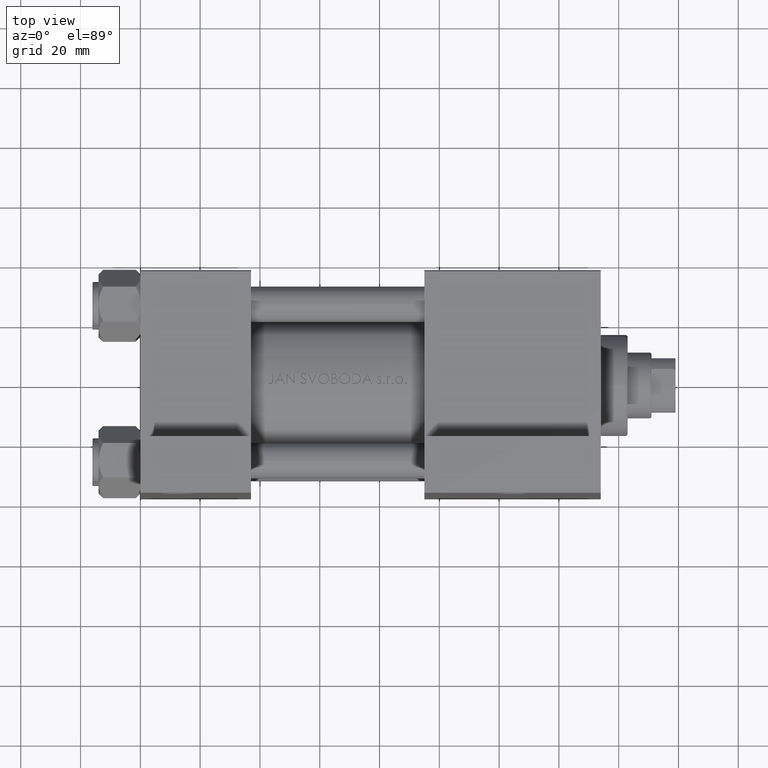
[diagram: clean part render]
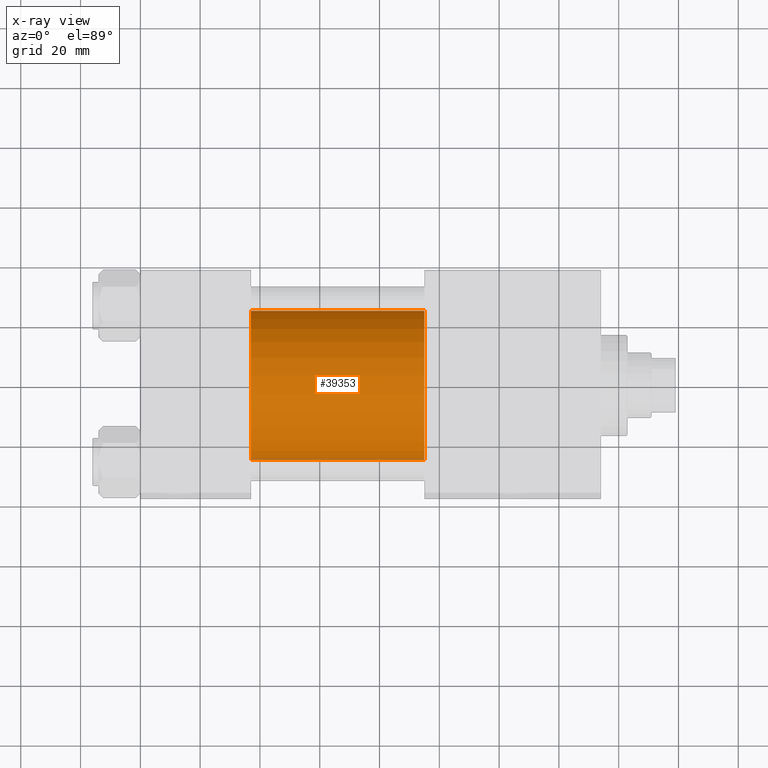
[diagram: x-ray — body ghosted, one internal face saturated and labeled with its STEP entity id]
A machine part, top view, then the same camera in x-ray: the body is ghosted and one INTERNAL B-rep face — a face not visible from any outside direction — is saturated and labeled: STEP entity #39353.
In plain terms, the highlighted cylindrical surface (partial cylindrical patch) has radius 25 mm, axis along (-1, -0, 0).
Its self-contained STEP definition (entity closure, byte-faithful):
#3210 = CIRCLE ( 'NONE', #8576, 25.00000000000000000 ) ;
#3768 = AXIS2_PLACEMENT_3D ( 'NONE', #10513, #17964, #10279 ) ;
#4409 = CARTESIAN_POINT ( 'NONE',  ( 37.00000000000000000, 0.000000000000000000, -0.5000000000000004441 ) ) ;
#4610 = ORIENTED_EDGE ( 'NONE', *, *, #10895, .T. ) ;
#5724 = ORIENTED_EDGE ( 'NONE', *, *, #29090, .T. ) ;
#5885 = CARTESIAN_POINT ( 'NONE',  ( 95.00000000000000000, 0.000000000000000000, 24.50000000000000000 ) ) ;
#6634 = VERTEX_POINT ( 'NONE', #5885 ) ;
#7751 = ORIENTED_EDGE ( 'NONE', *, *, #13077, .F. ) ;
#8576 = AXIS2_PLACEMENT_3D ( 'NONE', #29180, #21732, #18368 ) ;
#9797 = CYLINDRICAL_SURFACE ( 'NONE', #3768, 25.00000000000000000 ) ;
#10279 = DIRECTION ( 'NONE',  ( 0.000000000000000000, 0.000000000000000000, 1.000000000000000000 ) ) ;
#10513 = CARTESIAN_POINT ( 'NONE',  ( 95.00000000000000000, 0.000000000000000000, -0.5000000000000004441 ) ) ;
#10895 = EDGE_CURVE ( 'NONE', #6634, #28442, #3210, .T. ) ;
#11868 = EDGE_CURVE ( 'NONE', #26952, #25627, #41621, .T. ) ;
#12264 = ORIENTED_EDGE ( 'NONE', *, *, #11868, .F. ) ;
#13058 = LINE ( 'NONE', #34941, #44237 ) ;
#13077 = EDGE_CURVE ( 'NONE', #6634, #26952, #26306, .T. ) ;
#17259 = FACE_OUTER_BOUND ( 'NONE', #43146, .T. ) ;
#17844 = AXIS2_PLACEMENT_3D ( 'NONE', #4409, #19097, #33770 ) ;
#17964 = DIRECTION ( 'NONE',  ( -1.000000000000000000, -0.000000000000000000, -0.000000000000000000 ) ) ;
#18368 = DIRECTION ( 'NONE',  ( 0.000000000000000000, 0.000000000000000000, -1.000000000000000000 ) ) ;
#19097 = DIRECTION ( 'NONE',  ( 1.000000000000000000, 0.000000000000000000, 0.000000000000000000 ) ) ;
#21732 = DIRECTION ( 'NONE',  ( 1.000000000000000000, 0.000000000000000000, 0.000000000000000000 ) ) ;
#25627 = VERTEX_POINT ( 'NONE', #46746 ) ;
#26306 = LINE ( 'NONE', #30397, #43194 ) ;
#26952 = VERTEX_POINT ( 'NONE', #46701 ) ;
#28442 = VERTEX_POINT ( 'NONE', #39371 ) ;
#29090 = EDGE_CURVE ( 'NONE', #28442, #25627, #13058, .T. ) ;
#29180 = CARTESIAN_POINT ( 'NONE',  ( 95.00000000000000000, 0.000000000000000000, -0.5000000000000004441 ) ) ;
#30397 = CARTESIAN_POINT ( 'NONE',  ( 95.00000000000000000, 0.000000000000000000, 24.50000000000000000 ) ) ;
#33770 = DIRECTION ( 'NONE',  ( 0.000000000000000000, 0.000000000000000000, -1.000000000000000000 ) ) ;
#34941 = CARTESIAN_POINT ( 'NONE',  ( 95.00000000000000000, 3.061616997868382254E-15, -25.50000000000000355 ) ) ;
#39353 = ADVANCED_FACE ( 'NONE', ( #17259 ), #9797, .F. ) ;
#39371 = CARTESIAN_POINT ( 'NONE',  ( 95.00000000000000000, 3.061616997868382254E-15, -25.50000000000000355 ) ) ;
#40498 = DIRECTION ( 'NONE',  ( -1.000000000000000000, -0.000000000000000000, -0.000000000000000000 ) ) ;
#41621 = CIRCLE ( 'NONE', #17844, 25.00000000000000000 ) ;
#41914 = DIRECTION ( 'NONE',  ( -1.000000000000000000, -0.000000000000000000, -0.000000000000000000 ) ) ;
#43146 = EDGE_LOOP ( 'NONE', ( #4610, #5724, #12264, #7751 ) ) ;
#43194 = VECTOR ( 'NONE', #40498, 1000.000000000000000 ) ;
#44237 = VECTOR ( 'NONE', #41914, 1000.000000000000000 ) ;
#46701 = CARTESIAN_POINT ( 'NONE',  ( 37.00000000000000000, 0.000000000000000000, 24.50000000000000000 ) ) ;
#46746 = CARTESIAN_POINT ( 'NONE',  ( 37.00000000000000000, 3.061616997868382254E-15, -25.50000000000000355 ) ) ;